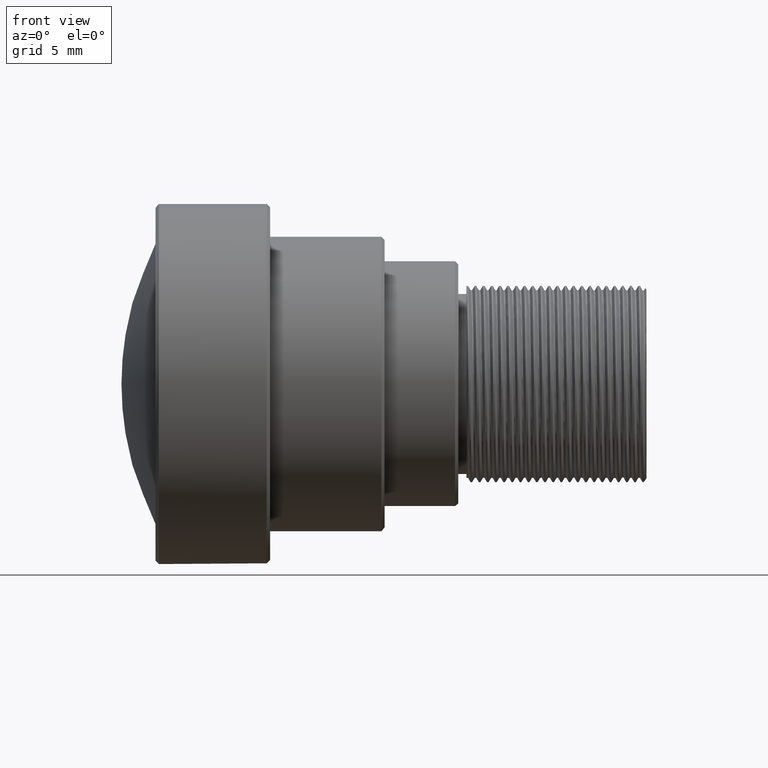
[diagram: clean part render]
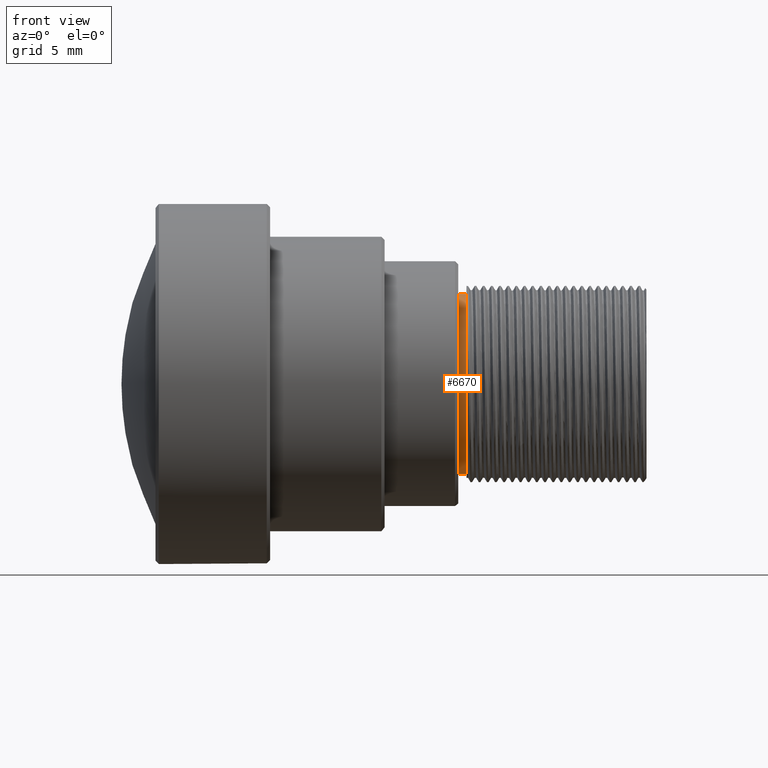
[diagram: same view with one face highlighted and labeled with its STEP entity id]
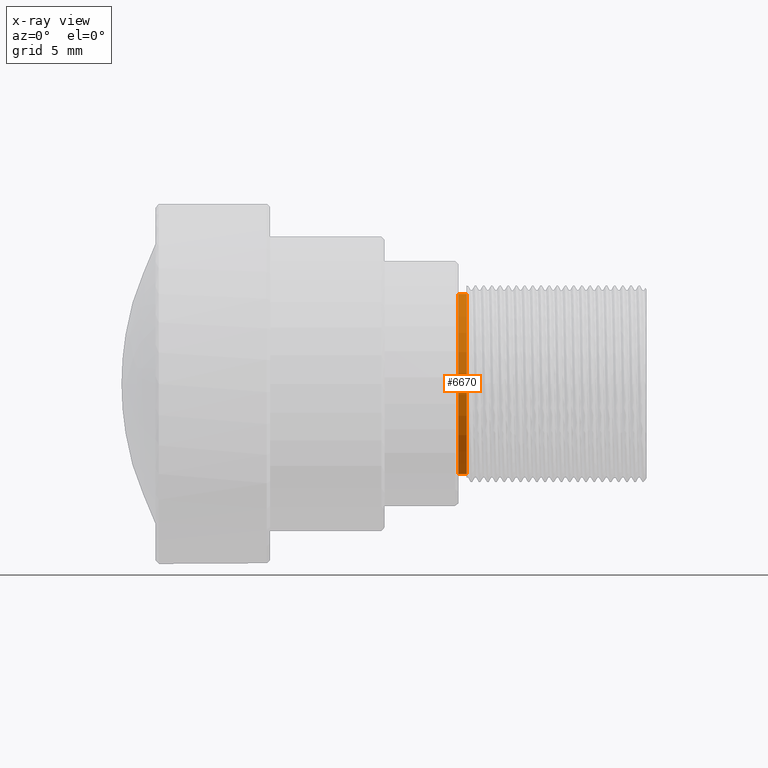
[diagram: x-ray of the same camera — body ghosted, the highlighted face saturated]
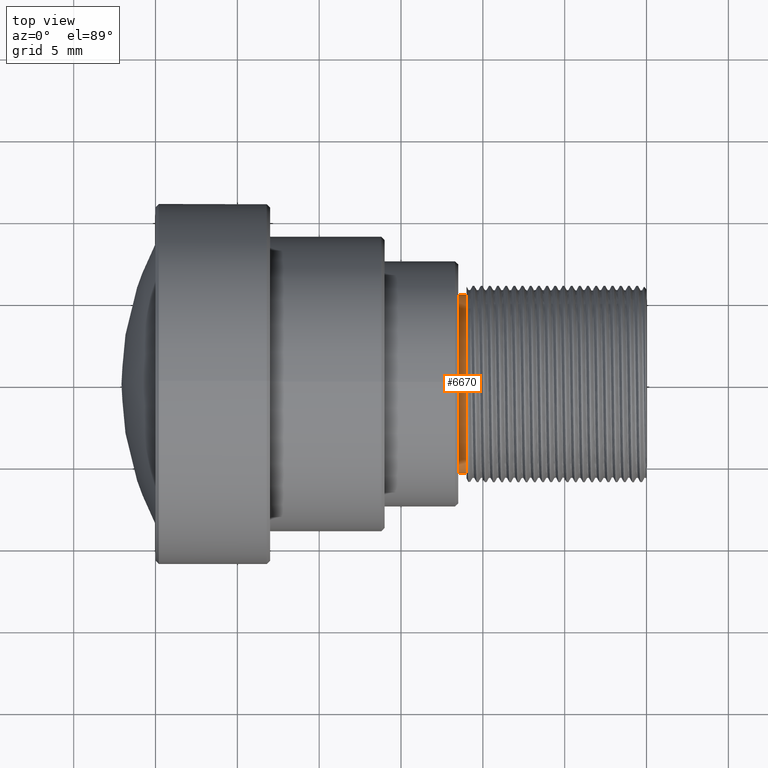
[diagram: same view with one face highlighted and labeled with its STEP entity id]
A machine part, front view. The second image highlights one B-rep face of the part: STEP entity #6670.
The next image is the same camera in x-ray: the body ghosted, the highlighted face saturated — about 0% of this face is hidden behind the body in this view.
A second angle (top view) of the same face is appended — the face is thin or edge-on in the first view.
In plain terms, the highlighted cylindrical surface (bore or boss wall) has radius 5.5 mm, axis along (-1, 0, 0).
Its self-contained STEP definition (entity closure, byte-faithful):
#354 = DIRECTION ( 'NONE',  ( 0.000000000000000000, 0.000000000000000000, 1.000000000000000000 ) ) ;
#653 = DIRECTION ( 'NONE',  ( 0.000000000000000000, 0.000000000000000000, 1.000000000000000000 ) ) ;
#887 = EDGE_CURVE ( 'NONE', #4411, #4411, #6895, .T. ) ;
#1089 = CARTESIAN_POINT ( 'NONE',  ( -11.50000000000000000, 0.000000000000000000, 0.000000000000000000 ) ) ;
#2282 = ORIENTED_EDGE ( 'NONE', *, *, #887, .T. ) ;
#2575 = DIRECTION ( 'NONE',  ( 1.000000000000000000, -0.000000000000000000, -0.000000000000000000 ) ) ;
#2745 = AXIS2_PLACEMENT_3D ( 'NONE', #1089, #2575, #354 ) ;
#2810 = CARTESIAN_POINT ( 'NONE',  ( -11.00000000000000000, 0.000000000000000000, 5.499999999998999911 ) ) ;
#2900 = DIRECTION ( 'NONE',  ( 0.000000000000000000, 0.000000000000000000, 1.000000000000000000 ) ) ;
#3180 = EDGE_LOOP ( 'NONE', ( #8287 ) ) ;
#3254 = FACE_OUTER_BOUND ( 'NONE', #3180, .T. ) ;
#3581 = VERTEX_POINT ( 'NONE', #7352 ) ;
#4291 = AXIS2_PLACEMENT_3D ( 'NONE', #6617, #4404, #2900 ) ;
#4404 = DIRECTION ( 'NONE',  ( -1.000000000000000000, 0.000000000000000000, 0.000000000000000000 ) ) ;
#4411 = VERTEX_POINT ( 'NONE', #2810 ) ;
#4895 = CARTESIAN_POINT ( 'NONE',  ( 1.604000000000000092, 0.000000000000000000, 0.000000000000000000 ) ) ;
#5524 = AXIS2_PLACEMENT_3D ( 'NONE', #4895, #7846, #653 ) ;
#5784 = EDGE_CURVE ( 'NONE', #3581, #3581, #5837, .T. ) ;
#5837 = CIRCLE ( 'NONE', #2745, 5.499999999998999911 ) ;
#6441 = FACE_OUTER_BOUND ( 'NONE', #8470, .T. ) ;
#6617 = CARTESIAN_POINT ( 'NONE',  ( -11.00000000000000000, 0.000000000000000000, 0.000000000000000000 ) ) ;
#6670 = ADVANCED_FACE ( 'NONE', ( #3254, #6441 ), #9477, .T. ) ;
#6895 = CIRCLE ( 'NONE', #4291, 5.499999999998999911 ) ;
#7352 = CARTESIAN_POINT ( 'NONE',  ( -11.50000000000000000, 0.000000000000000000, 5.499999999998999911 ) ) ;
#7846 = DIRECTION ( 'NONE',  ( -1.000000000000000000, 0.000000000000000000, 0.000000000000000000 ) ) ;
#8287 = ORIENTED_EDGE ( 'NONE', *, *, #5784, .T. ) ;
#8470 = EDGE_LOOP ( 'NONE', ( #2282 ) ) ;
#9477 = CYLINDRICAL_SURFACE ( 'NONE', #5524, 5.499999999998999911 ) ;